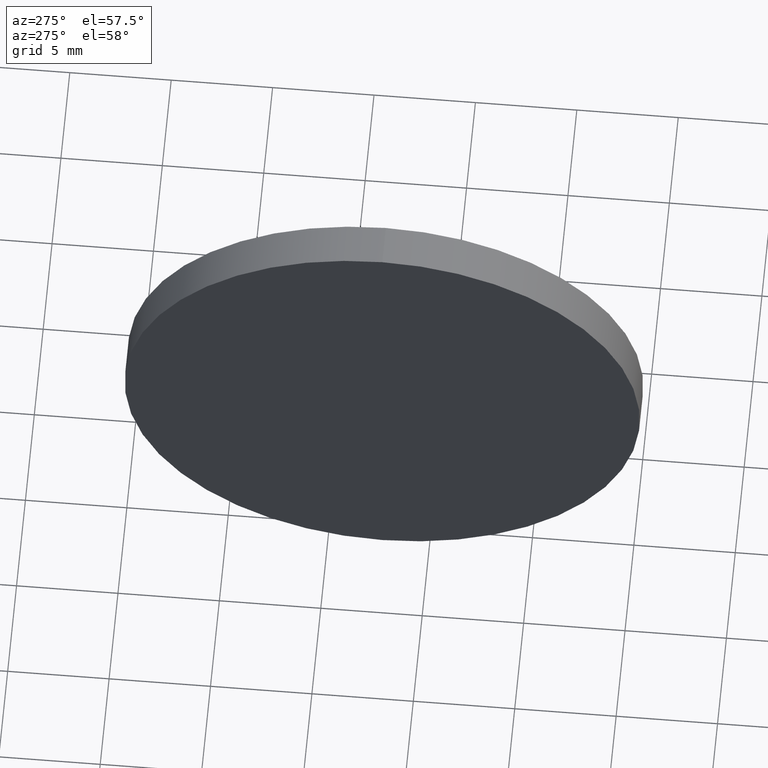
[diagram: clean part render]
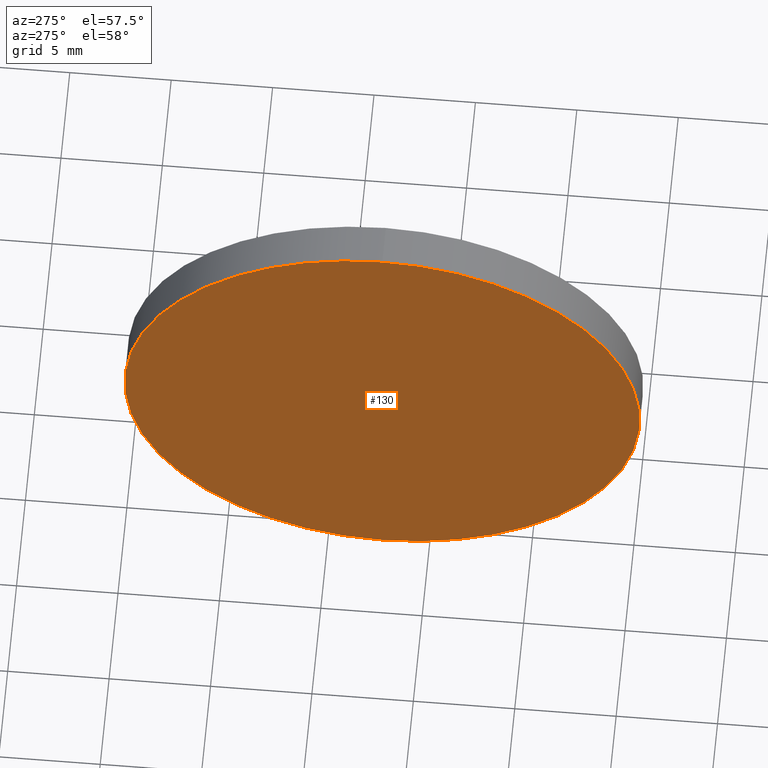
[diagram: same view with one face highlighted and labeled with its STEP entity id]
A machine part, auxiliary view. The second image highlights one B-rep face of the part: STEP entity #130.
In plain terms, the highlighted planar face has unit normal (1, 0, 0).
Its self-contained STEP definition (entity closure, byte-faithful):
#11 = DIRECTION ( 'NONE',  ( 0.0000000000000000000, 0.0000000000000000000, 1.000000000000000000 ) ) ;
#13 = ORIENTED_EDGE ( 'NONE', *, *, #135, .T. ) ;
#26 = DIRECTION ( 'NONE',  ( -1.000000000000000000, -0.0000000000000000000, -0.0000000000000000000 ) ) ;
#28 = VERTEX_POINT ( 'NONE', #59 ) ;
#29 = CARTESIAN_POINT ( 'NONE',  ( 173.8774097584038100, 57.31014665613982100, 0.0000000000000000000 ) ) ;
#43 = CIRCLE ( 'NONE', #133, 12.70000000000001000 ) ;
#50 = CIRCLE ( 'NONE', #86, 12.70000000000001000 ) ;
#52 = DIRECTION ( 'NONE',  ( 0.0000000000000000000, 0.0000000000000000000, -1.000000000000000000 ) ) ;
#56 = AXIS2_PLACEMENT_3D ( 'NONE', #29, #111, #52 ) ;
#57 = EDGE_LOOP ( 'NONE', ( #13, #84 ) ) ;
#59 = CARTESIAN_POINT ( 'NONE',  ( 173.8774097584038100, 57.31014665613982100, -12.70000000000001000 ) ) ;
#84 = ORIENTED_EDGE ( 'NONE', *, *, #101, .T. ) ;
#86 = AXIS2_PLACEMENT_3D ( 'NONE', #112, #137, #11 ) ;
#87 = FACE_OUTER_BOUND ( 'NONE', #57, .T. ) ;
#94 = PLANE ( 'NONE',  #56 ) ;
#98 = CARTESIAN_POINT ( 'NONE',  ( 173.8774097584038100, 57.31014665613982100, 0.0000000000000000000 ) ) ;
#101 = EDGE_CURVE ( 'NONE', #28, #114, #50, .T. ) ;
#111 = DIRECTION ( 'NONE',  ( 1.000000000000000000, 0.0000000000000000000, 0.0000000000000000000 ) ) ;
#112 = CARTESIAN_POINT ( 'NONE',  ( 173.8774097584038100, 57.31014665613982100, 0.0000000000000000000 ) ) ;
#114 = VERTEX_POINT ( 'NONE', #138 ) ;
#123 = DIRECTION ( 'NONE',  ( 0.0000000000000000000, 0.0000000000000000000, 1.000000000000000000 ) ) ;
#130 = ADVANCED_FACE ( 'NONE', ( #87 ), #94, .F. ) ;
#133 = AXIS2_PLACEMENT_3D ( 'NONE', #98, #26, #123 ) ;
#135 = EDGE_CURVE ( 'NONE', #114, #28, #43, .T. ) ;
#137 = DIRECTION ( 'NONE',  ( -1.000000000000000000, -0.0000000000000000000, -0.0000000000000000000 ) ) ;
#138 = CARTESIAN_POINT ( 'NONE',  ( 173.8774097584038100, 57.31014665613982100, 12.70000000000001000 ) ) ;